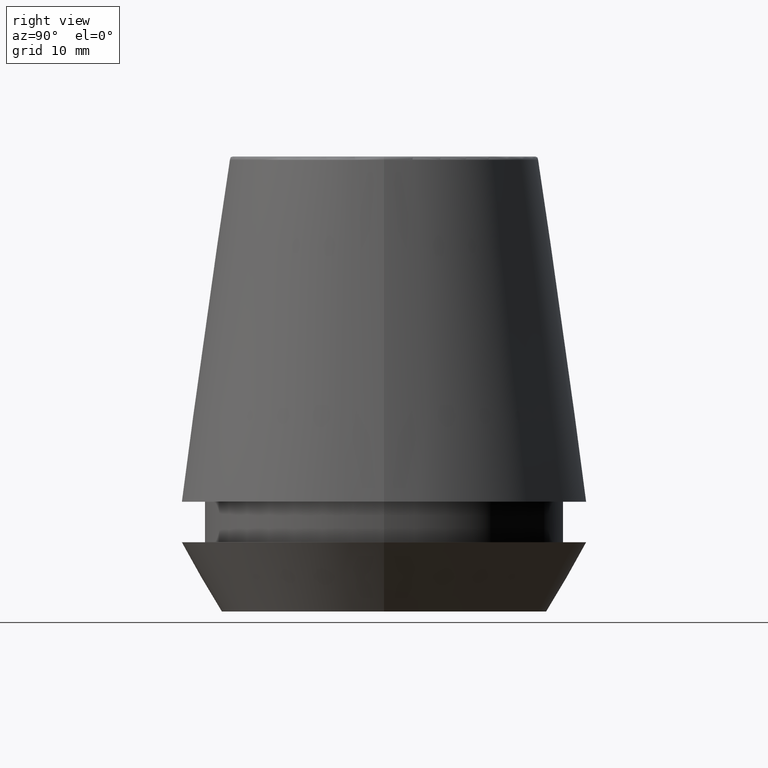
[diagram: clean part render]
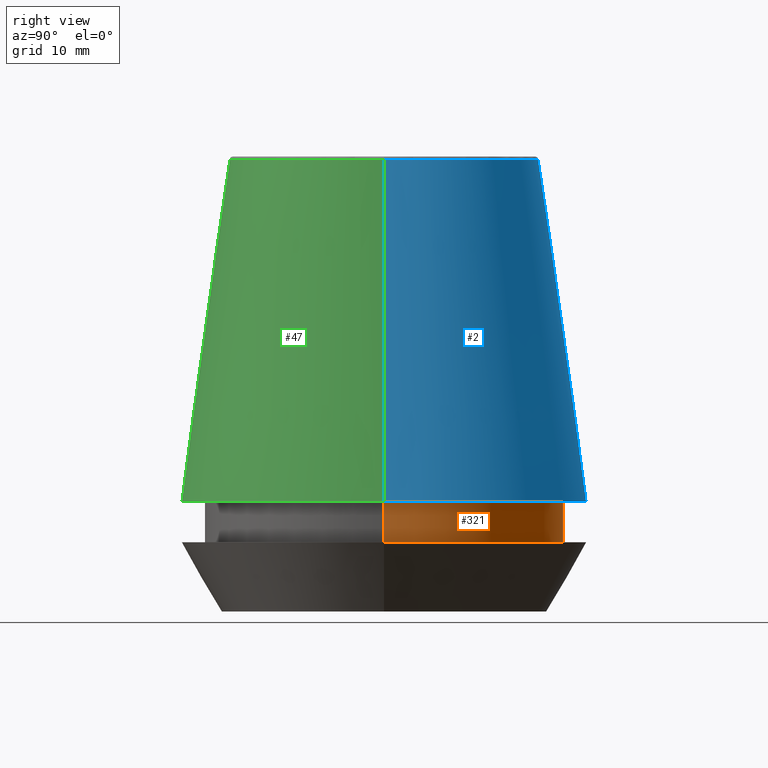
[diagram: same view with three faces highlighted in distinct colors, each labeled with its STEP entity id]
A machine part, right view with three faces highlighted in distinct colors.
Their STEP definitions:

[orange] entity #321 — the highlighted cylindrical surface (partial cylindrical patch) has radius 18.1 mm, axis along (-0, -0, 1).
#5 = DIRECTION ( 'NONE',  ( -0.0000000000000000000, -0.0000000000000000000, 1.000000000000000000 ) ) ;
#19 = DIRECTION ( 'NONE',  ( -0.0000000000000000000, -0.0000000000000000000, 1.000000000000000000 ) ) ;
#53 = CYLINDRICAL_SURFACE ( 'NONE', #382, 18.10000000000000500 ) ;
#56 = DIRECTION ( 'NONE',  ( 1.000000000000000000, 0.0000000000000000000, 0.0000000000000000000 ) ) ;
#93 = DIRECTION ( 'NONE',  ( -0.0000000000000000000, -0.0000000000000000000, 1.000000000000000000 ) ) ;
#109 = DIRECTION ( 'NONE',  ( -0.0000000000000000000, -0.0000000000000000000, 1.000000000000000000 ) ) ;
#121 = DIRECTION ( 'NONE',  ( 1.000000000000000000, 0.0000000000000000000, 0.0000000000000000000 ) ) ;
#148 = AXIS2_PLACEMENT_3D ( 'NONE', #284, #93, #121 ) ;
#154 = CARTESIAN_POINT ( 'NONE',  ( 0.0000000000000000000, 0.0000000000000000000, 46.00000000000000000 ) ) ;
#172 = CARTESIAN_POINT ( 'NONE',  ( 0.0000000000000000000, 0.0000000000000000000, 11.09999999999999800 ) ) ;
#177 = CIRCLE ( 'NONE', #232, 18.10000000000000500 ) ;
#180 = CARTESIAN_POINT ( 'NONE',  ( 18.10000000000000100, 0.0000000000000000000, 6.999999999999999100 ) ) ;
#184 = ORIENTED_EDGE ( 'NONE', *, *, #311, .F. ) ;
#207 = DIRECTION ( 'NONE',  ( 1.000000000000000000, 0.0000000000000000000, 0.0000000000000000000 ) ) ;
#208 = CARTESIAN_POINT ( 'NONE',  ( 18.10000000000000500, 0.0000000000000000000, 11.09999999999999800 ) ) ;
#217 = ORIENTED_EDGE ( 'NONE', *, *, #355, .T. ) ;
#221 = DIRECTION ( 'NONE',  ( -0.0000000000000000000, -0.0000000000000000000, 1.000000000000000000 ) ) ;
#225 = EDGE_LOOP ( 'NONE', ( #357, #217, #300, #184 ) ) ;
#227 = CARTESIAN_POINT ( 'NONE',  ( 18.10000000000000500, 0.0000000000000000000, 46.00000000000000000 ) ) ;
#229 = LINE ( 'NONE', #227, #257 ) ;
#232 = AXIS2_PLACEMENT_3D ( 'NONE', #172, #19, #207 ) ;
#253 = VERTEX_POINT ( 'NONE', #180 ) ;
#257 = VECTOR ( 'NONE', #5, 1000.000000000000000 ) ;
#262 = VERTEX_POINT ( 'NONE', #208 ) ;
#270 = VERTEX_POINT ( 'NONE', #275 ) ;
#273 = CARTESIAN_POINT ( 'NONE',  ( -18.10000000000000500, 2.216610706456710000E-015, 11.09999999999999800 ) ) ;
#274 = EDGE_CURVE ( 'NONE', #262, #309, #177, .T. ) ;
#275 = CARTESIAN_POINT ( 'NONE',  ( -18.10000000000000100, 2.216610706456709600E-015, 6.999999999999999100 ) ) ;
#283 = LINE ( 'NONE', #334, #360 ) ;
#284 = CARTESIAN_POINT ( 'NONE',  ( 0.0000000000000000000, 0.0000000000000000000, 6.999999999999999100 ) ) ;
#290 = EDGE_CURVE ( 'NONE', #253, #270, #337, .T. ) ;
#300 = ORIENTED_EDGE ( 'NONE', *, *, #274, .F. ) ;
#309 = VERTEX_POINT ( 'NONE', #273 ) ;
#311 = EDGE_CURVE ( 'NONE', #253, #262, #229, .T. ) ;
#321 = ADVANCED_FACE ( 'NONE', ( #333 ), #53, .T. ) ;
#333 = FACE_OUTER_BOUND ( 'NONE', #225, .T. ) ;
#334 = CARTESIAN_POINT ( 'NONE',  ( -18.10000000000000500, 2.216610706456710000E-015, 46.00000000000000000 ) ) ;
#337 = CIRCLE ( 'NONE', #148, 18.10000000000000100 ) ;
#355 = EDGE_CURVE ( 'NONE', #270, #309, #283, .T. ) ;
#357 = ORIENTED_EDGE ( 'NONE', *, *, #290, .T. ) ;
#360 = VECTOR ( 'NONE', #109, 1000.000000000000000 ) ;
#382 = AXIS2_PLACEMENT_3D ( 'NONE', #154, #221, #56 ) ;

[blue] entity #2 — the highlighted conical surface has half-angle 8 deg.
#2 = ADVANCED_FACE ( 'NONE', ( #323 ), #117, .T. ) ;
#8 = AXIS2_PLACEMENT_3D ( 'NONE', #354, #185, #386 ) ;
#9 = VERTEX_POINT ( 'NONE', #54 ) ;
#18 = DIRECTION ( 'NONE',  ( 1.000000000000000000, 0.0000000000000000000, 0.0000000000000000000 ) ) ;
#39 = AXIS2_PLACEMENT_3D ( 'NONE', #377, #170, #18 ) ;
#43 = CARTESIAN_POINT ( 'NONE',  ( -15.64384277279740400, 0.0000000000000000000, 45.65566924038402900 ) ) ;
#54 = CARTESIAN_POINT ( 'NONE',  ( 15.64384277279740400, 2.213191991290356800E-015, 45.65566924038402900 ) ) ;
#65 = DIRECTION ( 'NONE',  ( -0.0000000000000000000, -0.0000000000000000000, 1.000000000000000000 ) ) ;
#67 = CARTESIAN_POINT ( 'NONE',  ( 20.50032537154048700, 2.510565784773633700E-015, 11.09999999999999800 ) ) ;
#79 = CIRCLE ( 'NONE', #39, 15.64384277279740400 ) ;
#90 = CARTESIAN_POINT ( 'NONE',  ( 20.50032537154048700, 2.510565784773633700E-015, 11.09999999999999800 ) ) ;
#91 = DIRECTION ( 'NONE',  ( -0.1391731009600587200, 0.0000000000000000000, -0.9902680687415712500 ) ) ;
#92 = VECTOR ( 'NONE', #91, 1000.000000000000000 ) ;
#95 = EDGE_CURVE ( 'NONE', #9, #152, #79, .T. ) ;
#116 = CARTESIAN_POINT ( 'NONE',  ( -20.50032537154048700, 0.0000000000000000000, 11.09999999999999800 ) ) ;
#117 = CONICAL_SURFACE ( 'NONE', #8, 20.50032537154048700, 0.1396263401595396200 ) ;
#125 = VERTEX_POINT ( 'NONE', #143 ) ;
#129 = EDGE_CURVE ( 'NONE', #9, #215, #340, .T. ) ;
#143 = CARTESIAN_POINT ( 'NONE',  ( -20.50032537154048700, 0.0000000000000000000, 11.09999999999999800 ) ) ;
#149 = EDGE_CURVE ( 'NONE', #215, #125, #261, .T. ) ;
#152 = VERTEX_POINT ( 'NONE', #43 ) ;
#162 = AXIS2_PLACEMENT_3D ( 'NONE', #241, #65, #212 ) ;
#170 = DIRECTION ( 'NONE',  ( -0.0000000000000000000, -0.0000000000000000000, 1.000000000000000000 ) ) ;
#185 = DIRECTION ( 'NONE',  ( 0.0000000000000000000, 0.0000000000000000000, -1.000000000000000000 ) ) ;
#188 = EDGE_CURVE ( 'NONE', #152, #125, #249, .T. ) ;
#202 = ORIENTED_EDGE ( 'NONE', *, *, #149, .T. ) ;
#212 = DIRECTION ( 'NONE',  ( 1.000000000000000000, 0.0000000000000000000, 0.0000000000000000000 ) ) ;
#215 = VERTEX_POINT ( 'NONE', #67 ) ;
#241 = CARTESIAN_POINT ( 'NONE',  ( 0.0000000000000000000, 0.0000000000000000000, 11.09999999999999800 ) ) ;
#249 = LINE ( 'NONE', #116, #92 ) ;
#261 = CIRCLE ( 'NONE', #162, 20.50032537154048700 ) ;
#266 = EDGE_LOOP ( 'NONE', ( #331, #281, #202, #351 ) ) ;
#281 = ORIENTED_EDGE ( 'NONE', *, *, #129, .T. ) ;
#323 = FACE_OUTER_BOUND ( 'NONE', #266, .T. ) ;
#331 = ORIENTED_EDGE ( 'NONE', *, *, #95, .F. ) ;
#340 = LINE ( 'NONE', #90, #370 ) ;
#351 = ORIENTED_EDGE ( 'NONE', *, *, #188, .F. ) ;
#354 = CARTESIAN_POINT ( 'NONE',  ( 0.0000000000000000000, 0.0000000000000000000, 11.09999999999999800 ) ) ;
#370 = VECTOR ( 'NONE', #381, 1000.000000000000000 ) ;
#377 = CARTESIAN_POINT ( 'NONE',  ( 0.0000000000000000000, 0.0000000000000000000, 45.65566924038402900 ) ) ;
#381 = DIRECTION ( 'NONE',  ( 0.1391731009600587200, 1.704378926181473400E-017, -0.9902680687415712500 ) ) ;
#386 = DIRECTION ( 'NONE',  ( -1.000000000000000000, 0.0000000000000000000, 0.0000000000000000000 ) ) ;

[green] entity #47 — the highlighted conical surface has half-angle 8 deg.
#9 = VERTEX_POINT ( 'NONE', #54 ) ;
#12 = CIRCLE ( 'NONE', #361, 20.50032537154048700 ) ;
#22 = DIRECTION ( 'NONE',  ( -1.000000000000000000, 0.0000000000000000000, 0.0000000000000000000 ) ) ;
#23 = CARTESIAN_POINT ( 'NONE',  ( 0.0000000000000000000, 0.0000000000000000000, 45.65566924038402900 ) ) ;
#41 = EDGE_CURVE ( 'NONE', #152, #9, #264, .T. ) ;
#43 = CARTESIAN_POINT ( 'NONE',  ( -15.64384277279740400, 0.0000000000000000000, 45.65566924038402900 ) ) ;
#47 = ADVANCED_FACE ( 'NONE', ( #60 ), #348, .T. ) ;
#54 = CARTESIAN_POINT ( 'NONE',  ( 15.64384277279740400, 2.213191991290356800E-015, 45.65566924038402900 ) ) ;
#57 = CARTESIAN_POINT ( 'NONE',  ( 0.0000000000000000000, 0.0000000000000000000, 11.09999999999999800 ) ) ;
#60 = FACE_OUTER_BOUND ( 'NONE', #237, .T. ) ;
#67 = CARTESIAN_POINT ( 'NONE',  ( 20.50032537154048700, 2.510565784773633700E-015, 11.09999999999999800 ) ) ;
#86 = DIRECTION ( 'NONE',  ( 1.000000000000000000, 0.0000000000000000000, 0.0000000000000000000 ) ) ;
#90 = CARTESIAN_POINT ( 'NONE',  ( 20.50032537154048700, 2.510565784773633700E-015, 11.09999999999999800 ) ) ;
#91 = DIRECTION ( 'NONE',  ( -0.1391731009600587200, 0.0000000000000000000, -0.9902680687415712500 ) ) ;
#92 = VECTOR ( 'NONE', #91, 1000.000000000000000 ) ;
#116 = CARTESIAN_POINT ( 'NONE',  ( -20.50032537154048700, 0.0000000000000000000, 11.09999999999999800 ) ) ;
#125 = VERTEX_POINT ( 'NONE', #143 ) ;
#129 = EDGE_CURVE ( 'NONE', #9, #215, #340, .T. ) ;
#134 = AXIS2_PLACEMENT_3D ( 'NONE', #23, #138, #179 ) ;
#138 = DIRECTION ( 'NONE',  ( -0.0000000000000000000, -0.0000000000000000000, 1.000000000000000000 ) ) ;
#143 = CARTESIAN_POINT ( 'NONE',  ( -20.50032537154048700, 0.0000000000000000000, 11.09999999999999800 ) ) ;
#146 = DIRECTION ( 'NONE',  ( 0.0000000000000000000, 0.0000000000000000000, -1.000000000000000000 ) ) ;
#151 = ORIENTED_EDGE ( 'NONE', *, *, #365, .T. ) ;
#152 = VERTEX_POINT ( 'NONE', #43 ) ;
#161 = AXIS2_PLACEMENT_3D ( 'NONE', #320, #146, #22 ) ;
#179 = DIRECTION ( 'NONE',  ( 1.000000000000000000, 0.0000000000000000000, 0.0000000000000000000 ) ) ;
#188 = EDGE_CURVE ( 'NONE', #152, #125, #249, .T. ) ;
#194 = ORIENTED_EDGE ( 'NONE', *, *, #188, .T. ) ;
#215 = VERTEX_POINT ( 'NONE', #67 ) ;
#237 = EDGE_LOOP ( 'NONE', ( #316, #242, #194, #151 ) ) ;
#242 = ORIENTED_EDGE ( 'NONE', *, *, #41, .F. ) ;
#249 = LINE ( 'NONE', #116, #92 ) ;
#264 = CIRCLE ( 'NONE', #134, 15.64384277279740400 ) ;
#268 = DIRECTION ( 'NONE',  ( -0.0000000000000000000, -0.0000000000000000000, 1.000000000000000000 ) ) ;
#316 = ORIENTED_EDGE ( 'NONE', *, *, #129, .F. ) ;
#320 = CARTESIAN_POINT ( 'NONE',  ( 0.0000000000000000000, 0.0000000000000000000, 11.09999999999999800 ) ) ;
#340 = LINE ( 'NONE', #90, #370 ) ;
#348 = CONICAL_SURFACE ( 'NONE', #161, 20.50032537154048700, 0.1396263401595396200 ) ;
#361 = AXIS2_PLACEMENT_3D ( 'NONE', #57, #268, #86 ) ;
#365 = EDGE_CURVE ( 'NONE', #125, #215, #12, .T. ) ;
#370 = VECTOR ( 'NONE', #381, 1000.000000000000000 ) ;
#381 = DIRECTION ( 'NONE',  ( 0.1391731009600587200, 1.704378926181473400E-017, -0.9902680687415712500 ) ) ;